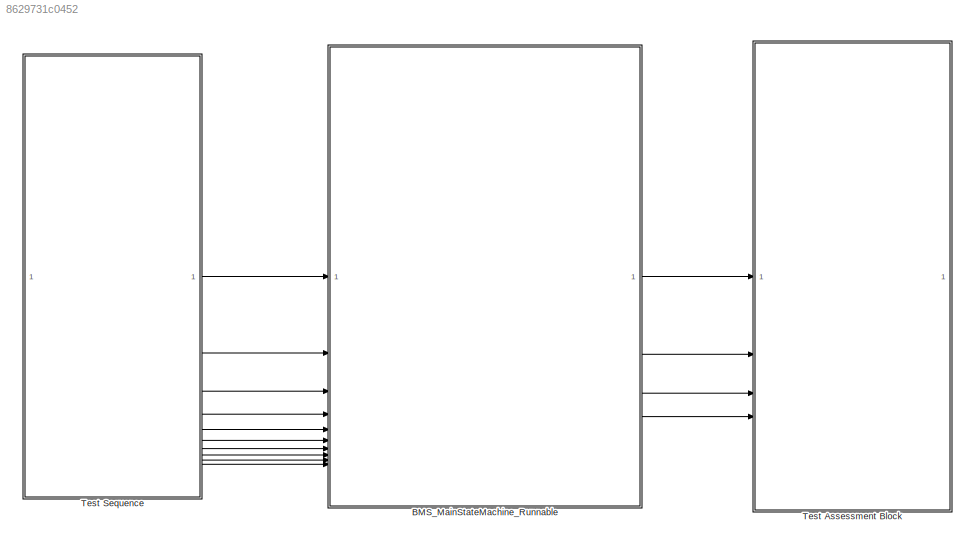
MODEL slx_8629731c0452
KIND model
CONFIG AbsTol = auto
CONFIG EnableMultiTasking = on
CONFIG FixedStep = auto
CONFIG MaxStep = auto
CONFIG MinStep = auto
CONFIG RelTol = 1e-3
CONFIG SampleTimeConstraint = Unconstrained
CONFIG SolverName = FixedStepDiscrete
CONFIG StartTime = 0.0
CONFIG StopTime = 10.0
WORKSPACE source: mxarray member
WORKSPACE BATT: object (value not decoded)
WORKSPACE ChrgBit: Simulink.Parameter (value not decoded)
WORKSPACE CntTime: Simulink.Parameter (value not decoded)
WORKSPACE CntTimeout: Simulink.Parameter (value not decoded)
WORKSPACE CurrTimeout: Simulink.Parameter (value not decoded)
WORKSPACE FaultResetTime: Simulink.Parameter (value not decoded)
WORKSPACE HighTempBit: Simulink.Parameter (value not decoded)
WORKSPACE InvrBit: Simulink.Parameter (value not decoded)
WORKSPACE LowTempBit: Simulink.Parameter (value not decoded)
WORKSPACE OverCurrBit: Simulink.Parameter (value not decoded)
WORKSPACE OverVoltBit: Simulink.Parameter (value not decoded)
WORKSPACE Schedule: object (value not decoded)
WORKSPACE TempTimeout: Simulink.Parameter (value not decoded)
WORKSPACE UnderVoltBit: Simulink.Parameter (value not decoded)
WORKSPACE VoltSensBit: Simulink.Parameter (value not decoded)
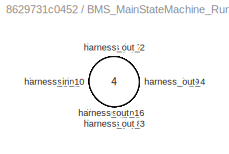
BLOCK [SubSystem] BMS_MainStateMachine_Runnable
  Priority = 1
  Tag = __SL_testing_harness_stub_
BLOCK [Inport] BMS_MainStateMachine_Runnable/harness_in_1
BLOCK [Inport] BMS_MainStateMachine_Runnable/harness_in_10
  Port = 10
BLOCK [Inport] BMS_MainStateMachine_Runnable/harness_in_2
  Port = 2
BLOCK [Inport] BMS_MainStateMachine_Runnable/harness_in_3
  Port = 3
BLOCK [Inport] BMS_MainStateMachine_Runnable/harness_in_4
  Port = 4
BLOCK [Inport] BMS_MainStateMachine_Runnable/harness_in_5
  Port = 5
BLOCK [Inport] BMS_MainStateMachine_Runnable/harness_in_6
  Port = 6
BLOCK [Inport] BMS_MainStateMachine_Runnable/harness_in_7
  Port = 7
BLOCK [Inport] BMS_MainStateMachine_Runnable/harness_in_8
  Port = 8
BLOCK [Inport] BMS_MainStateMachine_Runnable/harness_in_9
  Port = 9
BLOCK [Outport] BMS_MainStateMachine_Runnable/harness_out_1
BLOCK [Outport] BMS_MainStateMachine_Runnable/harness_out_2
  Port = 2
BLOCK [Outport] BMS_MainStateMachine_Runnable/harness_out_3
  Port = 3
BLOCK [Outport] BMS_MainStateMachine_Runnable/harness_out_4
  Port = 4
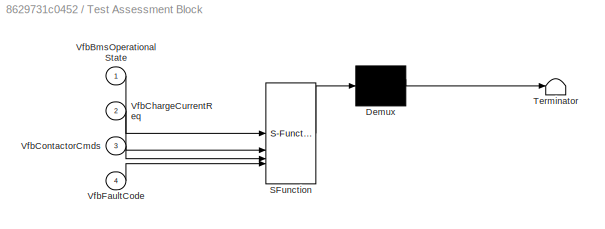
BLOCK [SubSystem] Test Assessment Block
  ErrorFcn = Stateflow.Translate.translate
  PermitHierarchicalResolution = ExplicitOnly
  SFBlockType = Test Sequence
  ShowPortLabels = none
  Tag = __SLT_ASMT__
  TreatAsAtomicUnit = on
BLOCK [Demux] Test Assessment Block/ Demux 
  Outputs = 1
BLOCK [S-Function] Test Assessment Block/ SFunction 
  EnableBusSupport = off
  FunctionName = sf_sfun
  PortCounts = [4 1]
  SFcnIsStateOwnerBlock = off
  SFunctionDeploymentMode = off
  Tag = Stateflow S-Function 1
BLOCK [Terminator] Test Assessment Block/ Terminator 
BLOCK [Inport] Test Assessment Block/VfbBmsOperationalState
BLOCK [Inport] Test Assessment Block/VfbChargeCurrentReq
  Port = 2
BLOCK [Inport] Test Assessment Block/VfbContactorCmds
  Port = 3
BLOCK [Inport] Test Assessment Block/VfbFaultCode
  Port = 4
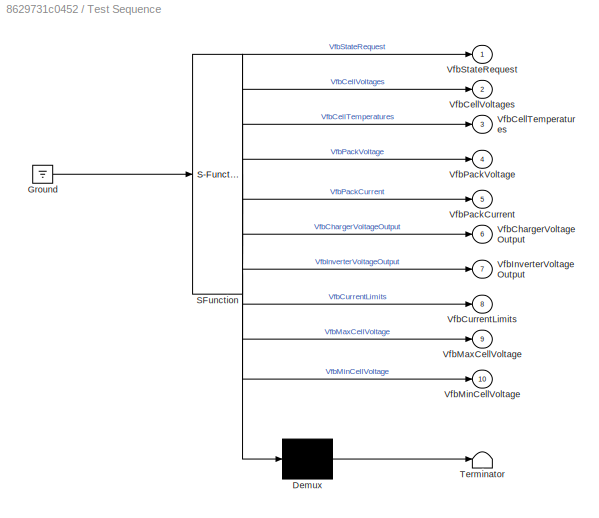
BLOCK [SubSystem] Test Sequence
  ErrorFcn = Stateflow.Translate.translate
  PermitHierarchicalResolution = ExplicitOnly
  SFBlockType = Test Sequence
  ShowPortLabels = none
  TreatAsAtomicUnit = on
BLOCK [Demux] Test Sequence/ Demux 
  Outputs = 1
BLOCK [Ground] Test Sequence/ Ground 
BLOCK [S-Function] Test Sequence/ SFunction 
  EnableBusSupport = off
  FunctionName = sf_sfun
  PortCounts = [1 11]
  SFcnIsStateOwnerBlock = off
  SFunctionDeploymentMode = off
  Tag = Stateflow S-Function 4
BLOCK [Terminator] Test Sequence/ Terminator 
BLOCK [Outport] Test Sequence/VfbCellTemperatures
  Port = 3
BLOCK [Outport] Test Sequence/VfbCellVoltages
  Port = 2
BLOCK [Outport] Test Sequence/VfbChargerVoltageOutput
  Port = 6
BLOCK [Outport] Test Sequence/VfbCurrentLimits
  Port = 8
BLOCK [Outport] Test Sequence/VfbInverterVoltageOutput
  Port = 7
BLOCK [Outport] Test Sequence/VfbMaxCellVoltage
  Port = 9
BLOCK [Outport] Test Sequence/VfbMinCellVoltage
  Port = 10
BLOCK [Outport] Test Sequence/VfbPackCurrent
  Port = 5
BLOCK [Outport] Test Sequence/VfbPackVoltage
  Port = 4
BLOCK [Outport] Test Sequence/VfbStateRequest
LINE BMS_MainStateMachine_Runnable:1 -> Test Assessment Block:1
LINE BMS_MainStateMachine_Runnable:2 -> Test Assessment Block:2
LINE BMS_MainStateMachine_Runnable:3 -> Test Assessment Block:3
LINE BMS_MainStateMachine_Runnable:4 -> Test Assessment Block:4
LINE Test Sequence:1 -> BMS_MainStateMachine_Runnable:1
LINE Test Sequence:10 -> BMS_MainStateMachine_Runnable:10
LINE Test Sequence:2 -> BMS_MainStateMachine_Runnable:2
LINE Test Sequence:3 -> BMS_MainStateMachine_Runnable:3
LINE Test Sequence:4 -> BMS_MainStateMachine_Runnable:4
LINE Test Sequence:5 -> BMS_MainStateMachine_Runnable:5
LINE Test Sequence:6 -> BMS_MainStateMachine_Runnable:6
LINE Test Sequence:7 -> BMS_MainStateMachine_Runnable:7
LINE Test Sequence:8 -> BMS_MainStateMachine_Runnable:8
LINE Test Sequence:9 -> BMS_MainStateMachine_Runnable:9
CHART Test Assessment Block states=3 transitions=10
  STATE_LABEL 'Run\n\n'
  STATE_LABEL 'step_1_1'
  STATE_LABEL 'step_1_2'
  STATE_LABEL '[t < 5\n]'
  STATE_LABEL '[~in(Run.step_1_1)]'
  STATE_LABEL '[~in(Run.step_1_2)]'
  STATE_LABEL 'step_1_1'
  STATE_LABEL 'step_1_2'
CHART Test Sequence states=1 transitions=1
  STATE_LABEL 'Run\n\n%% Initialize data outputs.\nVfbStateRequest = BMS_State_Enum.BMS_Standby;\nVfbCellVoltages = single(zeros(3, 1));\nVfbCellTemperatures = single(zeros(3, 1));\nVfbPackVoltage = single(0);\nVfbPackCurrent = single(0);\nVfbChargerVoltageOutput = single(0);\nVfbInverterVoltageOutput = single(0);\nVfbCurrentLimits = single(zeros(2, 1));\nVfbMaxCellVoltage = single(0);\nVfbMinCellVoltage = single(0);'
